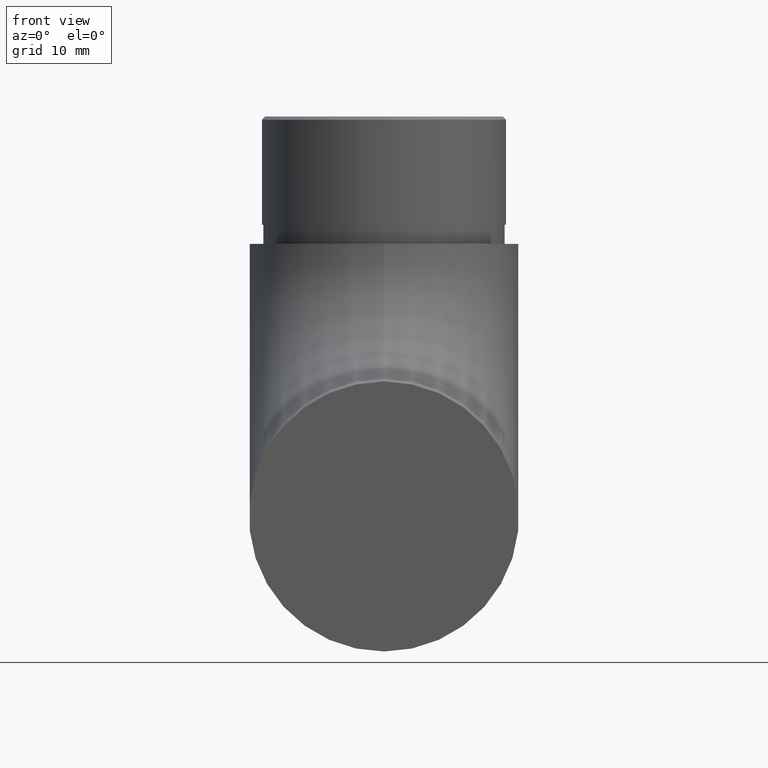
[diagram: clean part render]
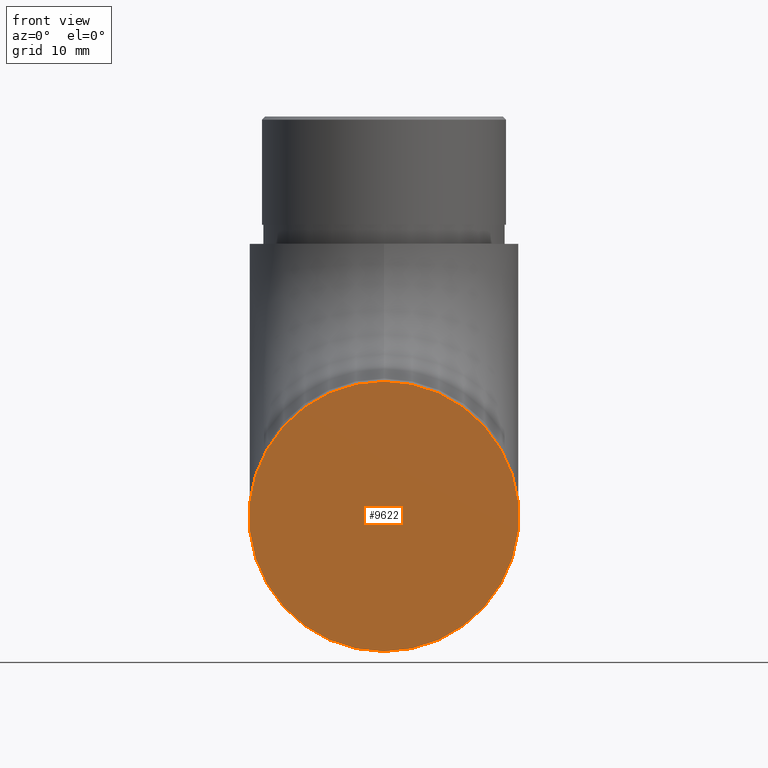
[diagram: same view with one face highlighted and labeled with its STEP entity id]
A machine part, front view. The second image highlights one B-rep face of the part: STEP entity #9622.
In plain terms, the highlighted planar face has unit normal (0, 1, 0).
Its self-contained STEP definition (entity closure, byte-faithful):
#1045 = EDGE_CURVE ( 'NONE', #7799, #7799, #9554, .T. ) ;
#2660 = FACE_OUTER_BOUND ( 'NONE', #3439, .T. ) ;
#3439 = EDGE_LOOP ( 'NONE', ( #6278 ) ) ;
#3467 = CARTESIAN_POINT ( 'NONE',  ( 0.0000000000000000000, 0.0000000000000000000, 21.19999999999999900 ) ) ;
#4937 = DIRECTION ( 'NONE',  ( 0.0000000000000000000, -0.0000000000000000000, 1.000000000000000000 ) ) ;
#6173 = CARTESIAN_POINT ( 'NONE',  ( 0.0000000000000000000, 0.0000000000000000000, 0.0000000000000000000 ) ) ;
#6278 = ORIENTED_EDGE ( 'NONE', *, *, #1045, .F. ) ;
#6873 = AXIS2_PLACEMENT_3D ( 'NONE', #9738, #8632, #4937 ) ;
#7123 = DIRECTION ( 'NONE',  ( 0.0000000000000000000, 1.000000000000000000, 0.0000000000000000000 ) ) ;
#7307 = AXIS2_PLACEMENT_3D ( 'NONE', #6173, #7123, #9017 ) ;
#7799 = VERTEX_POINT ( 'NONE', #3467 ) ;
#8632 = DIRECTION ( 'NONE',  ( 0.0000000000000000000, 1.000000000000000000, 0.0000000000000000000 ) ) ;
#9017 = DIRECTION ( 'NONE',  ( 0.0000000000000000000, 0.0000000000000000000, 1.000000000000000000 ) ) ;
#9554 = CIRCLE ( 'NONE', #7307, 21.19999999999999900 ) ;
#9622 = ADVANCED_FACE ( 'NONE', ( #2660 ), #9663, .F. ) ;
#9663 = PLANE ( 'NONE',  #6873 ) ;
#9738 = CARTESIAN_POINT ( 'NONE',  ( 0.0000000000000000000, 0.0000000000000000000, 0.0000000000000000000 ) ) ;